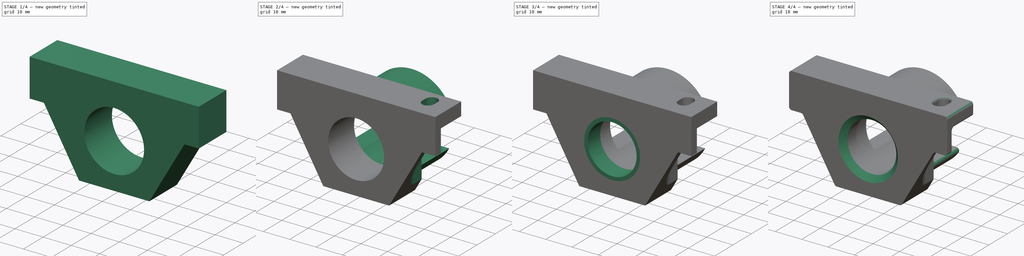
[diagram: build sequence overview — one tinted view per stage of 4, left to right]
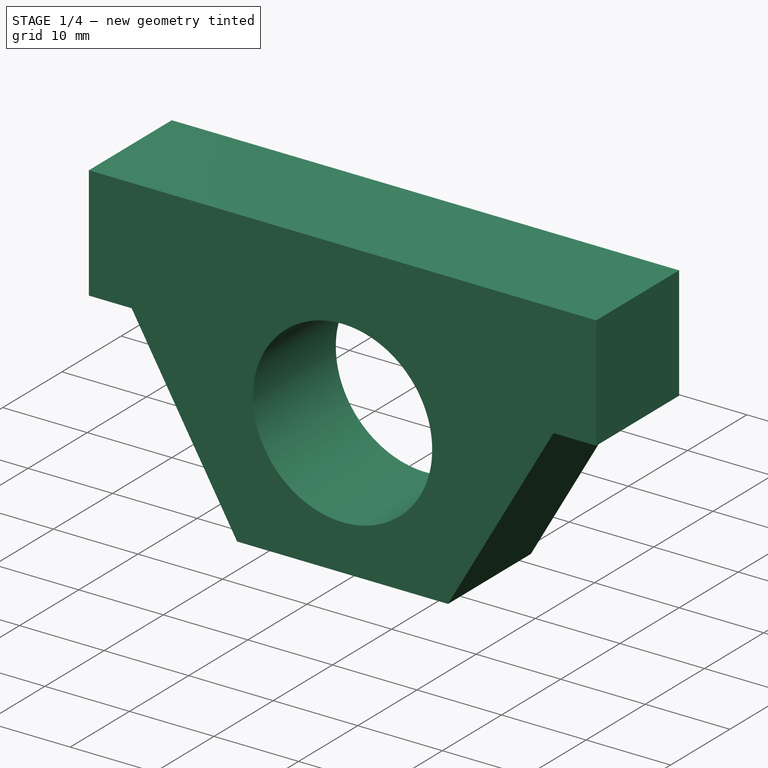
[diagram: stage 1 of 4 — iso view after this stage's code; geometry added in this stage tinted green]
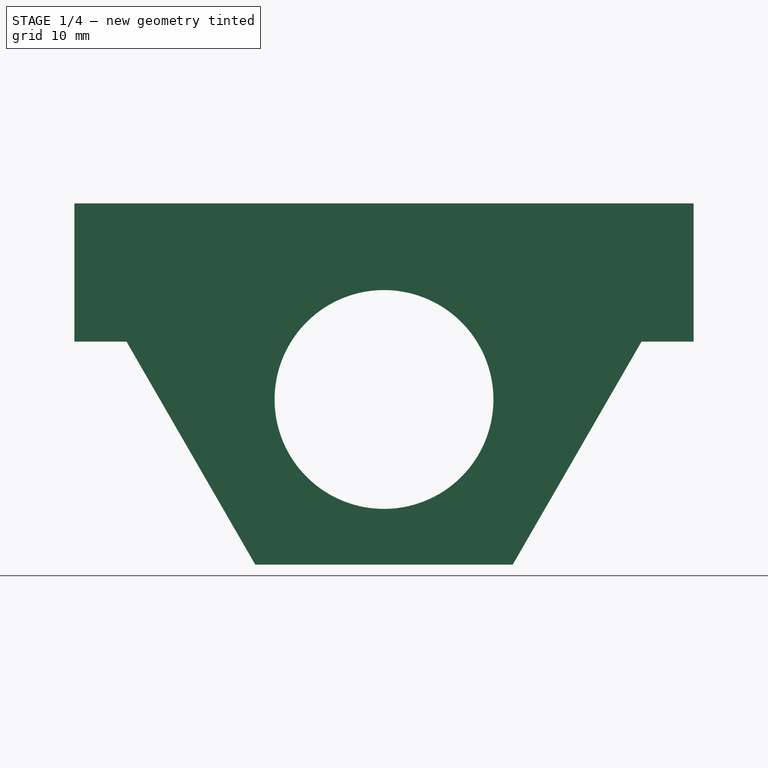
[diagram: stage 1 of 4 — front view after this stage's code; geometry added in this stage tinted green]
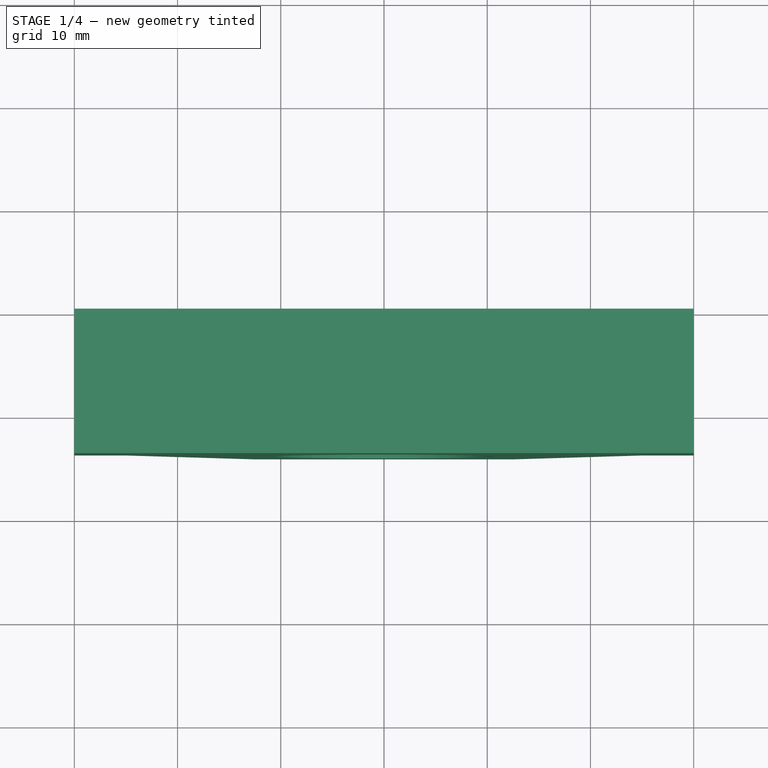
[diagram: stage 1 of 4 — top view after this stage's code; geometry added in this stage tinted green]
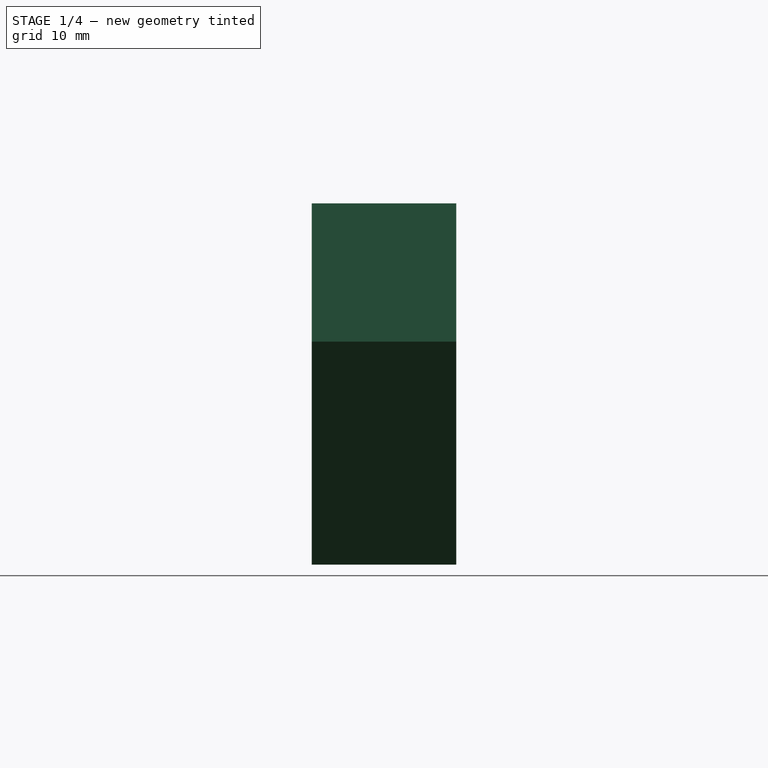
[diagram: stage 1 of 4 — right view after this stage's code; geometry added in this stage tinted green]
FCSTD DOCUMENT  (FreeCAD 0.18R16117 (Git))
Label: Hldn_SensorBracket_mk6
License: All rights reserved
LicenseURL: http://en.wikipedia.org/wiki/All_rights_reserved
objects: Sketcher::SketchObject×7, PartDesign::Pocket×4, PartDesign::Pad×3, PartDesign::Fillet×2, PartDesign::Chamfer×1, PartDesign::Body×1, Part::Box×1, Part::Mirroring×1
note: 27 computed .brp shape members not serialized (recipe doc carries the construction recipe); baked Part::Feature solids carry a one-line shape summary decoded from their .brp

FEATURE [Sketcher::SketchObject] Sketch
  MapMode = 5
  Placement = pos=(0,0,0) rot=(1,0,0;1.5708rad)
  Support = -> [XZ_Plane]
  sketch-geometry (14):
    g0: Circle CenterX=0 CenterY=0 CenterZ=0 NormalX=0 NormalY=0 NormalZ=1 AngleXU=0 Radius=10.6
    g1: LineSegment StartX=12.4708 StartY=-16 StartZ=0 EndX=24.9415 EndY=5.6 EndZ=0
    g2: LineSegment [constr] StartX=24.9415 StartY=5.6 StartZ=0 EndX=12.4708 EndY=27.2 EndZ=0
    g3: LineSegment [constr] StartX=12.4708 StartY=27.2 StartZ=0 EndX=-12.4708 EndY=27.2 EndZ=0
    g4: LineSegment [constr] StartX=-12.4708 StartY=27.2 StartZ=0 EndX=-24.9415 EndY=5.6 EndZ=0
    g5: LineSegment StartX=-24.9415 StartY=5.6 StartZ=0 EndX=-12.4708 EndY=-16 EndZ=0
    g6: LineSegment StartX=-12.4708 StartY=-16 StartZ=0 EndX=12.4708 EndY=-16 EndZ=0
    g7: Circle [constr] CenterX=0 CenterY=5.6 CenterZ=0 NormalX=0 NormalY=0 NormalZ=1 AngleXU=0 Radius=24.9415
    g8: LineSegment StartX=-30 StartY=19 StartZ=0 EndX=30 EndY=19 EndZ=0
    g9: LineSegment StartX=30 StartY=19 StartZ=0 EndX=30 EndY=5.6 EndZ=0
    g10: LineSegment [constr] StartX=30 StartY=5.6 StartZ=0 EndX=-30 EndY=5.6 EndZ=0
    g11: LineSegment StartX=-30 StartY=5.6 StartZ=0 EndX=-30 EndY=19 EndZ=0
    g12: LineSegment StartX=-24.9415 StartY=5.6 StartZ=0 EndX=-30 EndY=5.6 EndZ=0
    g13: LineSegment StartX=24.9415 StartY=5.6 StartZ=0 EndX=30 EndY=5.6 EndZ=0
  constraints (34):
    c: Coincident(g0,g-1)
    c: Coincident(g1,g2)
    c: Coincident(g2,g3)
    c: Coincident(g3,g4)
    c: Coincident(g4,g5)
    c: Coincident(g5,g6)
    c: Coincident(g6,g1)
    c: Equal(g1, g2-g6) x5
    c: PointOnObject(g1,g7)
    c: PointOnObject(g2,g7)
    c: PointOnObject(g3,g7)
    c: PointOnObject(g4,g7)
    c: PointOnObject(g5,g7)
    c: PointOnObject(g6,g7)
    c: PointOnObject(g7,g-2)
    c: Horizontal(g6)
    c: Distance(g7,g0) = 5.6
    c: Coincident(g8,g9)
    c: Coincident(g9,g10)
    c: Coincident(g10,g11)
    c: Coincident(g11,g8)
    c: Horizontal(g10)
    c: Vertical(g9)
    c: Vertical(g11)
    c: PointOnObject(g5,g10)
    c: Coincident(g12,g5)
    c: Coincident(g12,g11)
    c: Coincident(g13,g1)
    c: Coincident(g13,g9)
    c: Symmetric(g8,g8,g-2)
    c: Distance(g0,g8) = 19
    c: Distance(g0,g6) = 16
    c: Distance(g8) = 60
    c: Diameter(g0) = 21.2
FEATURE [PartDesign::Pad] Pad
  Length = 14
  Length2 = 100
  Placement = pos=(0,0,0) rot=(1,0,0;1.5708rad)
  Profile = -> Sketch
  Type = 0
FEATURE [PartDesign::Body] Body
  Group = -> [Sketch,Pad,Sketch001,Pad001,Sketch003,Sketch004,Pocket002,Sketch005,Pocket003,Sketch007,Pocket,Pocket004,Sketch008,Pad002,Chamfer,Fillet,Fillet001]
  Origin = -> Origin
  Tip = -> Fillet001
FEATURE [Part::Box] Box001  label="Cube001"
  AttacherType = Attacher::AttachEngine3D
  Height = 5
  Length = 8
  Placement = pos=(18,-14,14) rot=(0,0,1;0rad)
  Width = 13
FEATURE [Part::Mirroring] Part__Mirroring  label="density infill"
  Base = (0,0,0)
  Normal = (1,0,0)
  Source = -> Box001
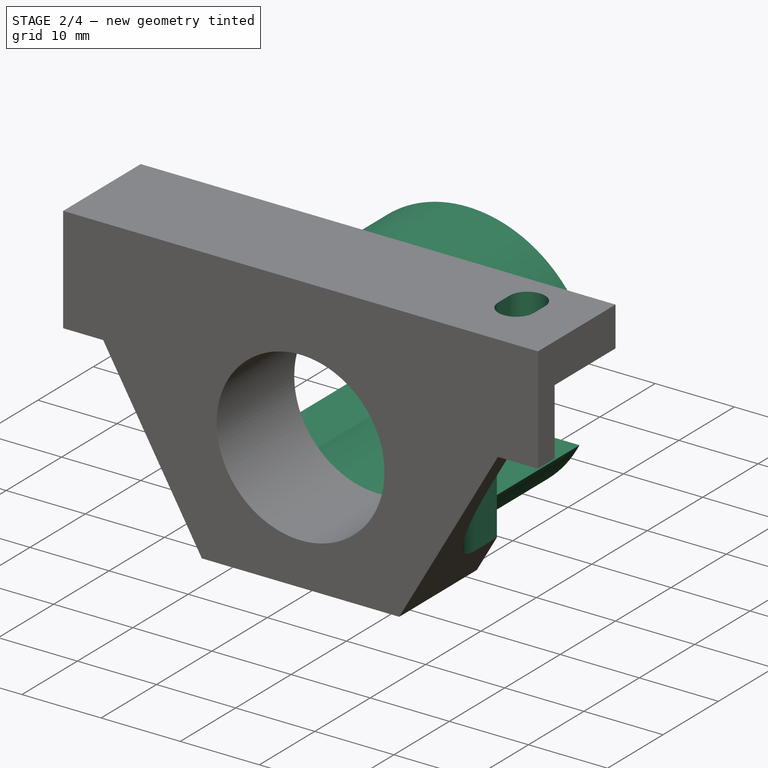
[diagram: stage 2 of 4 — iso view after this stage's code; geometry added in this stage tinted green]
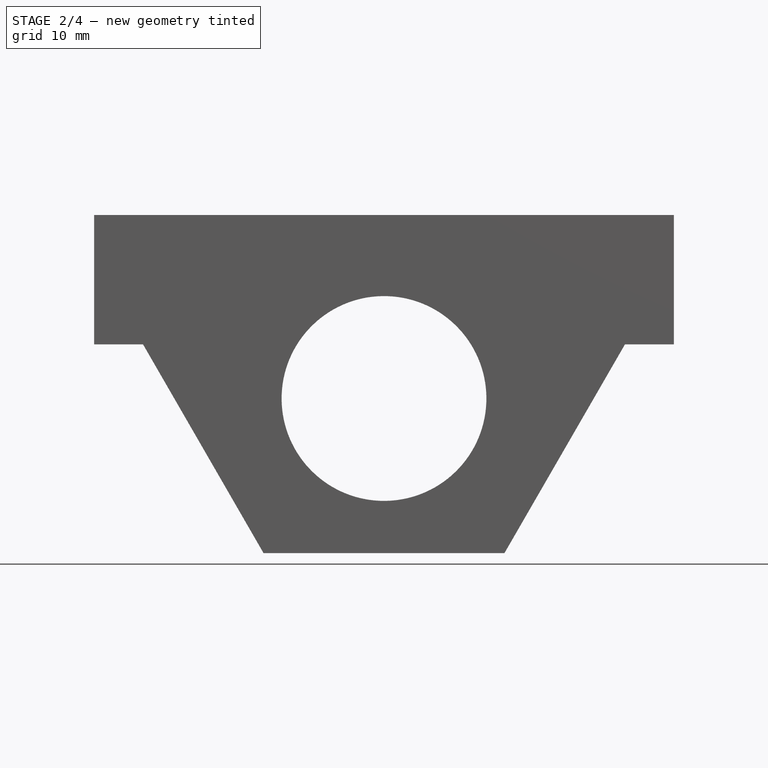
[diagram: stage 2 of 4 — front view after this stage's code; geometry added in this stage tinted green]
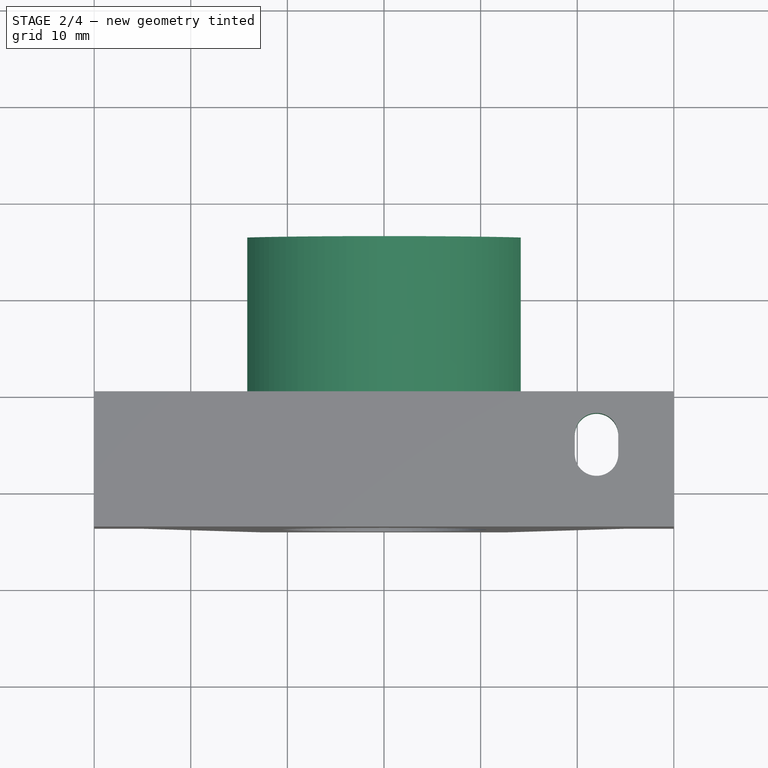
[diagram: stage 2 of 4 — top view after this stage's code; geometry added in this stage tinted green]
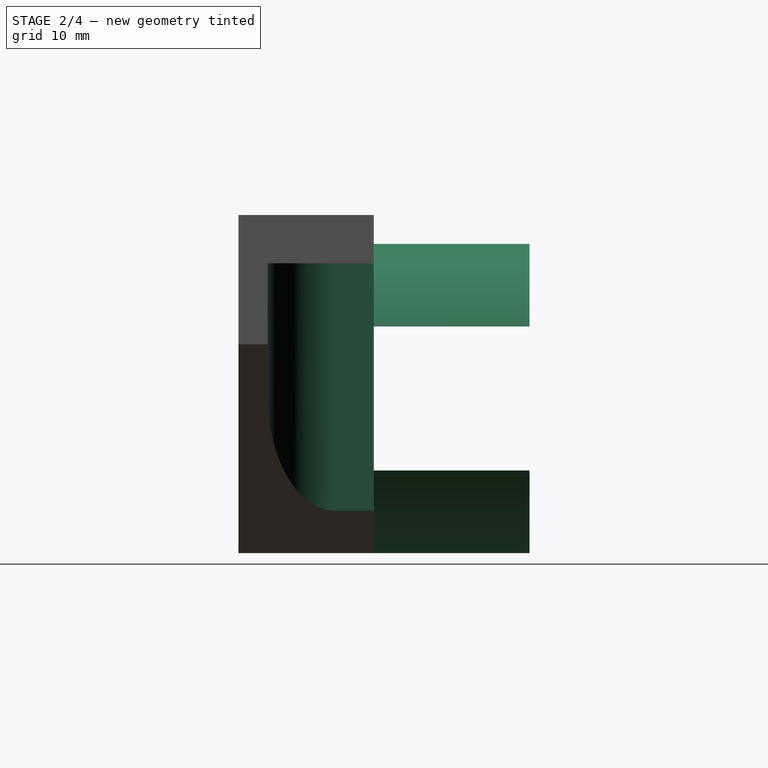
[diagram: stage 2 of 4 — right view after this stage's code; geometry added in this stage tinted green]
FEATURE [Sketcher::SketchObject] Sketch001
  MapMode = 5
  Placement = pos=(0,0,0) rot=(-1,0,0;1.5708rad)
  sketch-geometry (8):
    g0: ArcOfCircle CenterX=0 CenterY=0 CenterZ=0 NormalX=0 NormalY=0 NormalZ=1 AngleXU=0 Radius=16 StartAngle=3.62593 EndAngle=5.79884
    g1: ArcOfCircle CenterX=0 CenterY=0 CenterZ=0 NormalX=0 NormalY=0 NormalZ=1 AngleXU=0 Radius=10.7 StartAngle=3.91177 EndAngle=5.51301
    g2: LineSegment StartX=14.1597 StartY=-7.45 StartZ=0 EndX=7.68033 EndY=-7.45 EndZ=0
    g3: LineSegment StartX=-14.1597 StartY=7.45 StartZ=0 EndX=-7.68033 EndY=7.45 EndZ=0
    g4: LineSegment StartX=7.68033 StartY=7.45 StartZ=0 EndX=14.1597 EndY=7.45 EndZ=0
    g5: LineSegment StartX=-7.68033 StartY=-7.45 StartZ=0 EndX=-14.1597 EndY=-7.45 EndZ=0
    g6: ArcOfCircle CenterX=0 CenterY=0 CenterZ=0 NormalX=0 NormalY=0 NormalZ=1 AngleXU=0 Radius=10.7 StartAngle=0.770176 EndAngle=2.37142
    g7: ArcOfCircle CenterX=0 CenterY=0 CenterZ=0 NormalX=0 NormalY=0 NormalZ=1 AngleXU=0 Radius=16 StartAngle=0.484341 EndAngle=2.65725
  constraints (21):
    c: Coincident(g0,g-1)
    c: Diameter(g0) = 32
    c: Coincident(g1,g0)
    c: Diameter(g1) = 21.4
    c: Horizontal(g2)
    c: Horizontal(g3)
    c: Tangent(g3,g4)
    c: Tangent(g2,g5)
    c: Coincident(g0,g5)
    c: Coincident(g7,g3)
    c: Coincident(g1,g5)
    c: Coincident(g6,g3)
    c: Coincident(g1,g2)
    c: Coincident(g6,g4)
    c: Coincident(g1,g6)
    c: Equal(g0,g7)
    c: Coincident(g0,g2)
    c: Coincident(g7,g4)
    c: Coincident(g0,g7)
    c: Symmetric(g1,g4,g-1)
    c: DistanceY(g0,g4) = 14.9
FEATURE [PartDesign::Pad] Pad001
  BaseFeature = -> Pad
  Length = 16.12
  Length2 = 100
  Placement = pos=(0,0,0) rot=(1,0,0;1.5708rad)
  Profile = -> Sketch001
  Type = 0
FEATURE [Sketcher::SketchObject] Sketch003
  MapMode = 5
  Support = -> [XY_Plane]
  sketch-geometry (4):
    g0: LineSegment StartX=-1.8 StartY=10.12 StartZ=0 EndX=1.8 EndY=10.12 EndZ=0
    g1: LineSegment StartX=1.8 StartY=10.12 StartZ=0 EndX=1.8 EndY=13.62 EndZ=0
    g2: LineSegment StartX=1.8 StartY=13.62 StartZ=0 EndX=-1.8 EndY=13.62 EndZ=0
    g3: LineSegment StartX=-1.8 StartY=13.62 StartZ=0 EndX=-1.8 EndY=10.12 EndZ=0
  constraints (11):
    c: Coincident(g0,g1)
    c: Coincident(g1,g2)
    c: Coincident(g2,g3)
    c: Coincident(g3,g0)
    c: Horizontal(g0)
    c: Vertical(g1)
    c: Vertical(g3)
    c: Distance(g-1,g0) = 10.12
    c: Distance(g3) = 3.5
    c: Distance(g2) = 3.6
    c: Symmetric(g2,g1,g-2)
FEATURE [Sketcher::SketchObject] Sketch004
  MapMode = 5
  Placement = pos=(-1e-15,1.1e-14,5.6) rot=(1,0,0;3.14159rad)
  sketch-geometry (10):
    g0: LineSegment StartX=-30 StartY=11 StartZ=0 EndX=-22 EndY=11 EndZ=0
    g1: LineSegment StartX=-15 StartY=4 StartZ=0 EndX=-15 EndY=0 EndZ=0
    g2: LineSegment StartX=-15 StartY=0 StartZ=0 EndX=-30 EndY=0 EndZ=0
    g3: LineSegment StartX=-30 StartY=0 StartZ=0 EndX=-30 EndY=11 EndZ=0
    g4: LineSegment StartX=30 StartY=11 StartZ=0 EndX=22 EndY=11 EndZ=0
    g5: LineSegment StartX=15 StartY=4 StartZ=0 EndX=15 EndY=0 EndZ=0
    g6: LineSegment StartX=15 StartY=0 StartZ=0 EndX=30 EndY=0 EndZ=0
    g7: LineSegment StartX=30 StartY=0 StartZ=0 EndX=30 EndY=11 EndZ=0
    g8: ArcOfCircle CenterX=-22 CenterY=4 CenterZ=0 NormalX=0 NormalY=0 NormalZ=1 AngleXU=0 Radius=7 StartAngle=0 EndAngle=1.5708
    g9: ArcOfCircle CenterX=22 CenterY=4 CenterZ=0 NormalX=0 NormalY=0 NormalZ=1 AngleXU=0 Radius=7 StartAngle=1.5708 EndAngle=3.14159
  constraints (25):
    c: Coincident(g1,g2)
    c: Coincident(g2,g3)
    c: Coincident(g3,g0)
    c: Horizontal(g0)
    c: Horizontal(g2)
    c: Vertical(g1)
    c: Vertical(g3)
    c: PointOnObject(g1,g-1)
    c: Coincident(g5,g6)
    c: Coincident(g6,g7)
    c: Coincident(g7,g4)
    c: Horizontal(g4)
    c: Horizontal(g6)
    c: Vertical(g5)
    c: Vertical(g7)
    c: PointOnObject(g5,g-1)
    c: Equal(g4,g0)
    c: Equal(g5,g1)
    c: Tangent(g0,g8) = 1.5708
    c: Tangent(g1,g8) = 1.5708
    c: Tangent(g4,g9) = -1.5708
    c: Tangent(g5,g9) = -1.5708
    c: Equal(g8,g9)
    c: Radius(g8) = 7
    c: DistanceX(g2,g1) = 15
FEATURE [PartDesign::Pocket] Pocket002
  BaseFeature = -> Pad001
  Length = 8.4
  Length2 = 100
  Placement = pos=(0,0,0) rot=(1,0,0;1.5708rad)
  Profile = -> Sketch004
  Type = 4
FEATURE [Sketcher::SketchObject] Sketch005
  ExternalGeometry = -> [Pocket002]
  MapMode = 5
  Placement = pos=(0,1.26e-14,19) rot=(0,0,1;3.14159rad)
  Support = -> [Pocket002]
  sketch-geometry (8):
    g0: ArcOfCircle CenterX=-22 CenterY=4.5 CenterZ=0 NormalX=0 NormalY=0 NormalZ=1 AngleXU=0 Radius=2.25 StartAngle=3.14159 EndAngle=6.28319
    g1: ArcOfCircle CenterX=-22 CenterY=6.5 CenterZ=0 NormalX=0 NormalY=0 NormalZ=1 AngleXU=0 Radius=2.25 StartAngle=0 EndAngle=3.14159
    g2: LineSegment StartX=-19.75 StartY=4.5 StartZ=0 EndX=-19.75 EndY=6.5 EndZ=0
    g3: LineSegment StartX=-24.25 StartY=4.5 StartZ=0 EndX=-24.25 EndY=6.5 EndZ=0
    g4: ArcOfCircle CenterX=22 CenterY=4.5 CenterZ=0 NormalX=0 NormalY=0 NormalZ=1 AngleXU=0 Radius=2.25 StartAngle=3.14159 EndAngle=6.28319
    g5: ArcOfCircle CenterX=22 CenterY=6.5 CenterZ=0 NormalX=0 NormalY=0 NormalZ=1 AngleXU=0 Radius=2.25 StartAngle=2e-16 EndAngle=3.14159
    g6: LineSegment StartX=24.25 StartY=4.5 StartZ=0 EndX=24.25 EndY=6.5 EndZ=0
    g7: LineSegment StartX=19.75 StartY=4.5 StartZ=0 EndX=19.75 EndY=6.5 EndZ=0
  constraints (19):
    c: Tangent(g0,g3) = 1.5708
    c: Tangent(g0,g2) = -1.5708
    c: Tangent(g2,g1) = -1.5708
    c: Tangent(g3,g1) = 1.5708
    c: Vertical(g2)
    c: Equal(g0,g1)
    c: Tangent(g4,g7) = 1.5708
    c: Tangent(g4,g6) = -1.5708
    c: Tangent(g6,g5) = -1.5708
    c: Tangent(g7,g5) = 1.5708
    c: Vertical(g6)
    c: Equal(g4,g5)
    c: Symmetric(g0,g4,g-2)
    c: Equal(g3,g7)
    c: Equal(g1,g5)
    c: DistanceX(g-2,g4) = 22
    c: Diameter(g4) = 4.5
    c: Distance(g5,g4) = 2
    c: Distance(g0,g-3) = 9.5
FEATURE [PartDesign::Pocket] Pocket003
  BaseFeature = -> Pocket002
  Length = 5
  Length2 = 100
  Placement = pos=(0,0,0) rot=(1,0,0;1.5708rad)
  Profile = -> Sketch005
  Type = 0
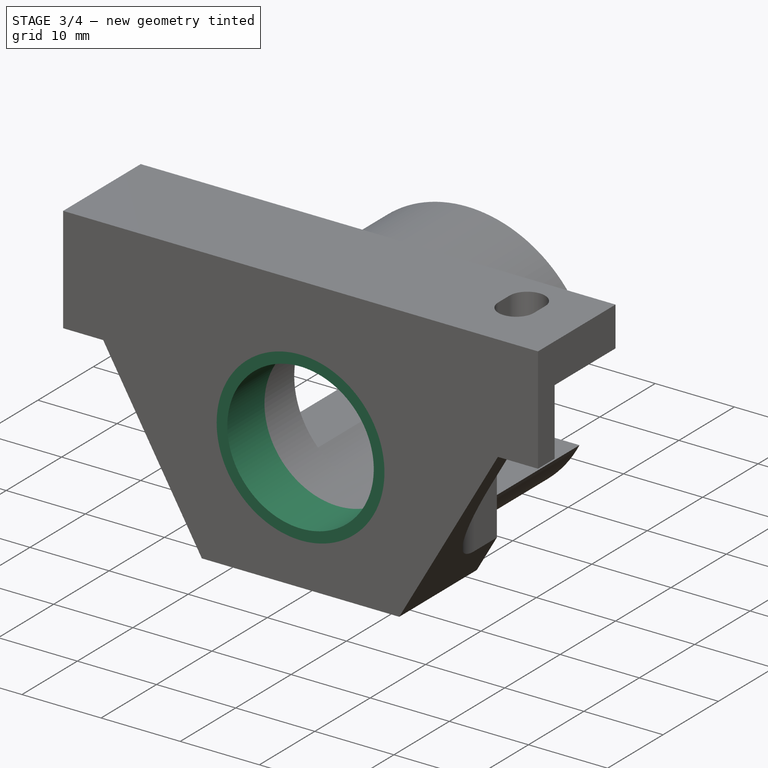
[diagram: stage 3 of 4 — iso view after this stage's code; geometry added in this stage tinted green]
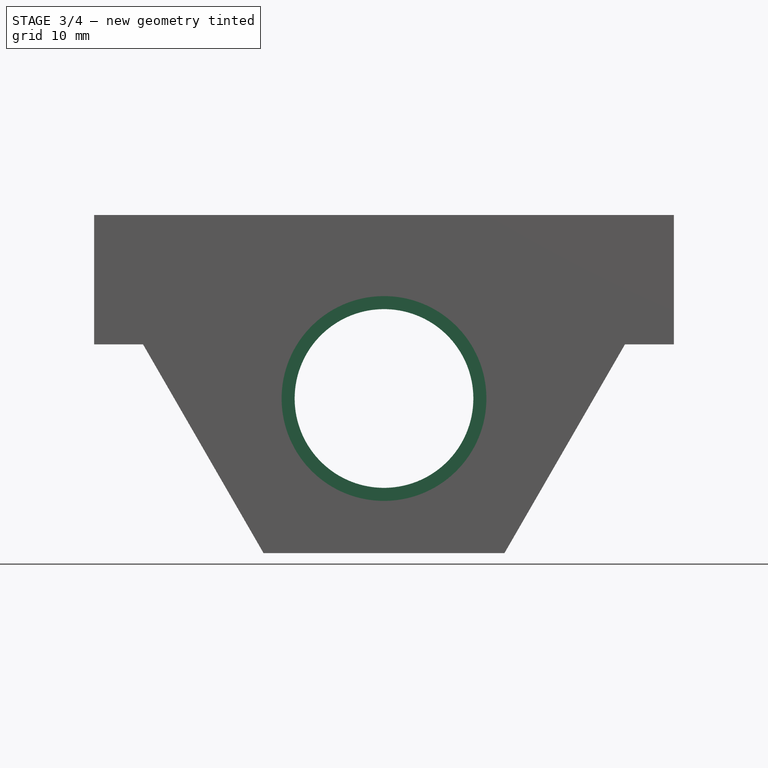
[diagram: stage 3 of 4 — front view after this stage's code; geometry added in this stage tinted green]
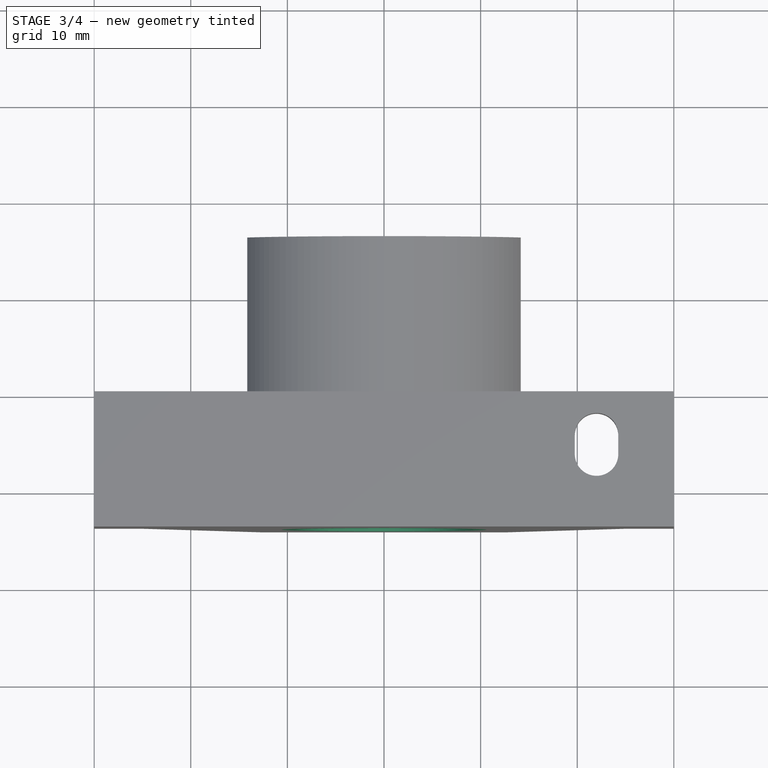
[diagram: stage 3 of 4 — top view after this stage's code; geometry added in this stage tinted green]
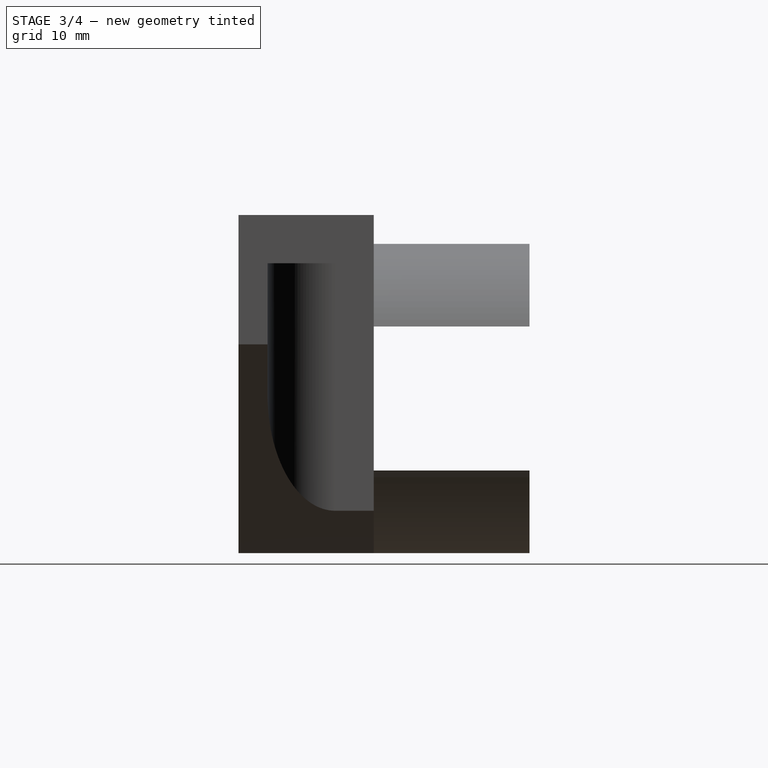
[diagram: stage 3 of 4 — right view after this stage's code; geometry added in this stage tinted green]
FEATURE [Sketcher::SketchObject] Sketch007
  MapMode = 5
  Placement = pos=(0,16.12,-3.22e-14) rot=(-1,0,0;1.5708rad)
  sketch-geometry (4):
    g0: LineSegment StartX=-1.8 StartY=12.05 StartZ=0 EndX=1.8 EndY=12.05 EndZ=0
    g1: LineSegment StartX=1.8 StartY=12.05 StartZ=0 EndX=1.8 EndY=-12.05 EndZ=0
    g2: LineSegment StartX=1.8 StartY=-12.05 StartZ=0 EndX=-1.8 EndY=-12.05 EndZ=0
    g3: LineSegment StartX=-1.8 StartY=-12.05 StartZ=0 EndX=-1.8 EndY=12.05 EndZ=0
  constraints (10):
    c: Coincident(g0,g1)
    c: Coincident(g1,g2)
    c: Coincident(g2,g3)
    c: Coincident(g3,g0)
    c: Horizontal(g2)
    c: Vertical(g1)
    c: Distance(g1) = 24.1
    c: Distance(g2) = 3.6
    c: Symmetric(g0,g0,g-2)
    c: Symmetric(g0,g2,g-1)
FEATURE [PartDesign::Pocket] Pocket
  BaseFeature = -> Pocket003
  Length = 6
  Length2 = 100
  Placement = pos=(0,0,0) rot=(1,0,0;1.5708rad)
  Profile = -> Sketch007
  Type = 0
FEATURE [PartDesign::Pocket] Pocket004
  BaseFeature = -> Pocket
  Length = 27
  Length2 = 100
  Midplane = true
  Placement = pos=(0,0,0) rot=(1,0,0;1.5708rad)
  Profile = -> Sketch003
  Type = 0
FEATURE [Sketcher::SketchObject] Sketch008
  ExternalGeometry = -> [Pocket004]
  MapMode = 5
  Placement = pos=(0,-14,6.2e-15) rot=(1,0,0;1.5708rad)
  Support = -> [Pocket004]
  sketch-geometry (2):
    g0: Circle CenterX=0 CenterY=0 CenterZ=0 NormalX=0 NormalY=0 NormalZ=1 AngleXU=0 Radius=9.25
    g1: Circle CenterX=0.026834 CenterY=-0.039027 CenterZ=0 NormalX=0 NormalY=0 NormalZ=1 AngleXU=0 Radius=10.8179
  constraints (1):
    c: Diameter(g0) = 18.5
FEATURE [PartDesign::Pad] Pad002
  BaseFeature = -> Pocket004
  Length = 6.7
  Length2 = 100
  Placement = pos=(0,0,0) rot=(1,0,0;1.5708rad)
  Profile = -> Sketch008
  Reversed = true
  Type = 0
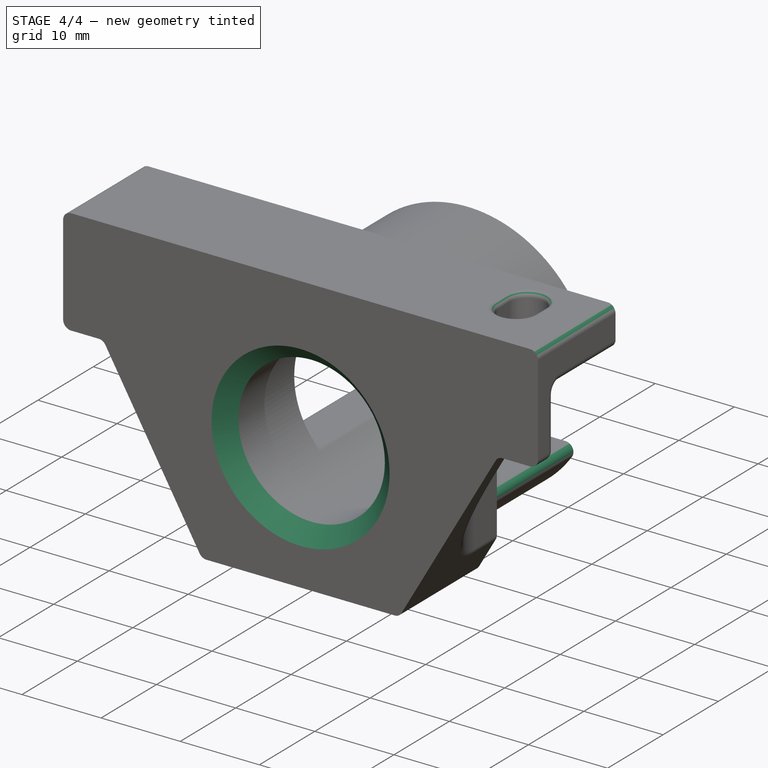
[diagram: stage 4 of 4 — iso view after this stage's code; geometry added in this stage tinted green]
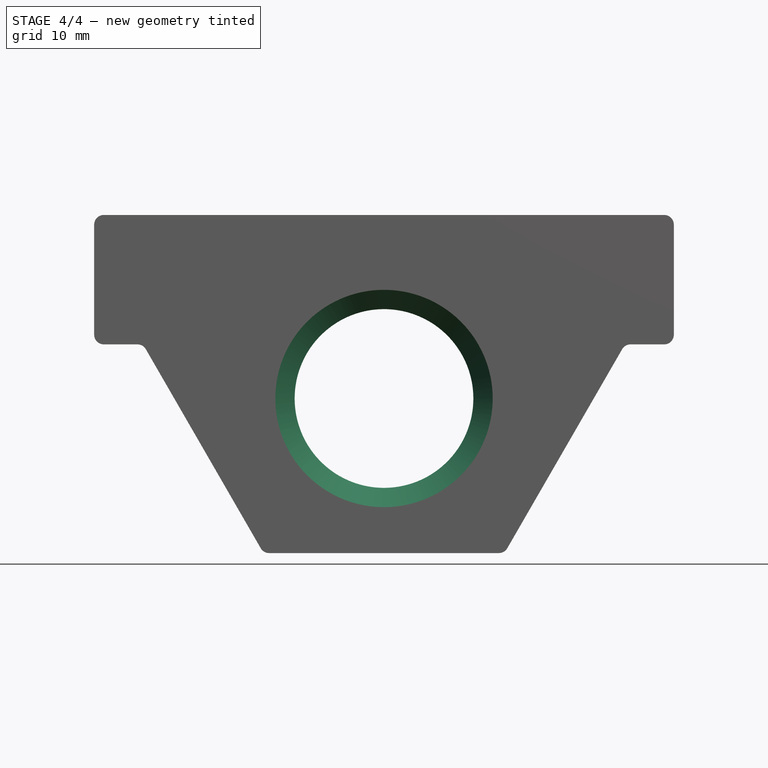
[diagram: stage 4 of 4 — front view after this stage's code; geometry added in this stage tinted green]
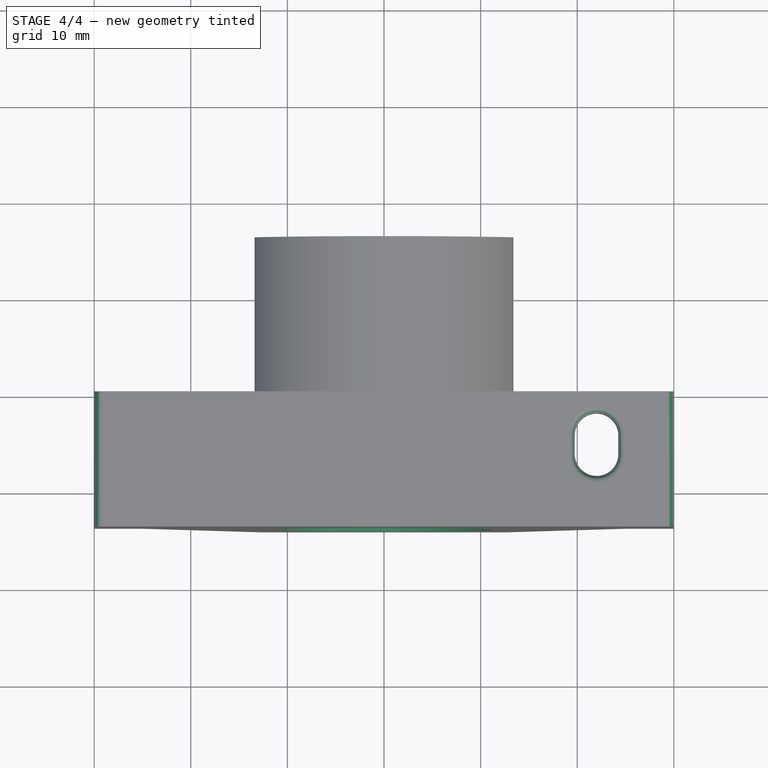
[diagram: stage 4 of 4 — top view after this stage's code; geometry added in this stage tinted green]
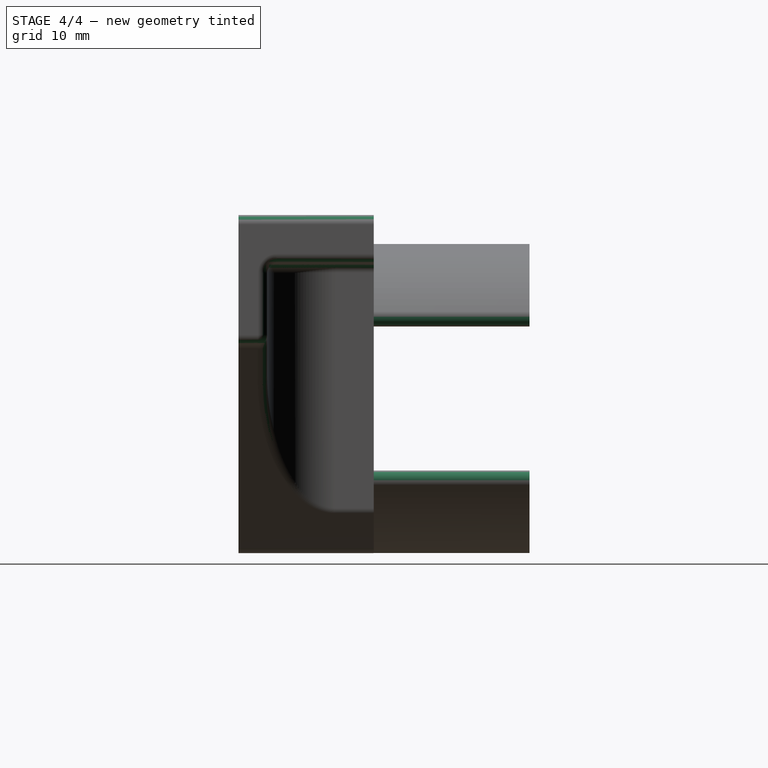
[diagram: stage 4 of 4 — right view after this stage's code; geometry added in this stage tinted green]
FEATURE [PartDesign::Chamfer] Chamfer
  Base = -> Pad002 [Edge141]
  BaseFeature = -> Pad002
  Placement = pos=(0,0,0) rot=(1,0,0;1.5708rad)
  Size = 2
FEATURE [PartDesign::Fillet] Fillet
  Base = -> Chamfer [Edge33,Edge45,Edge43,Edge31,Edge20,Edge16,Edge17,Edge19,Edge24,Edge26,Edge23,Edge18,Edge14,Edge54,Edge72,Edge28,Edge42,Edge46,Edge116,Edge114,Edge91,Edge90,Edge113,Edge105,Edge93,Edge95]
  BaseFeature = -> Chamfer
  Placement = pos=(0,0,0) rot=(1,0,0;1.5708rad)
  Radius = 1
FEATURE [PartDesign::Fillet] Fillet001
  Base = -> Fillet [Edge194,Edge193,Edge178,Edge179,Face100,Face102,Edge56,Edge133,Edge138,Edge58]
  BaseFeature = -> Fillet
  Placement = pos=(0,0,0) rot=(1,0,0;1.5708rad)
  Radius = 0.7
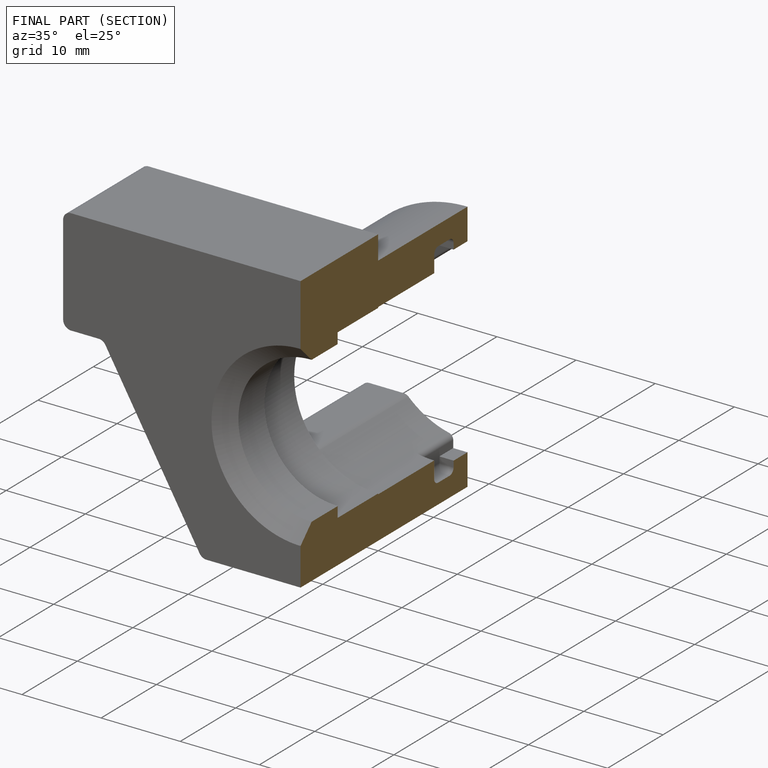
[diagram: finished part — half-section view (interior)]
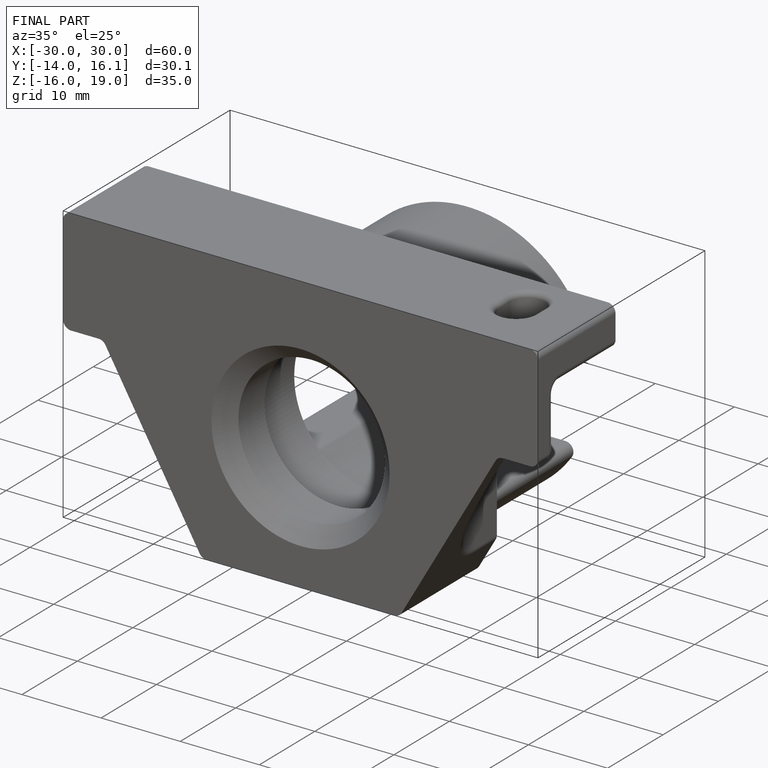
[diagram: finished part — iso view with bounding-box wireframe]
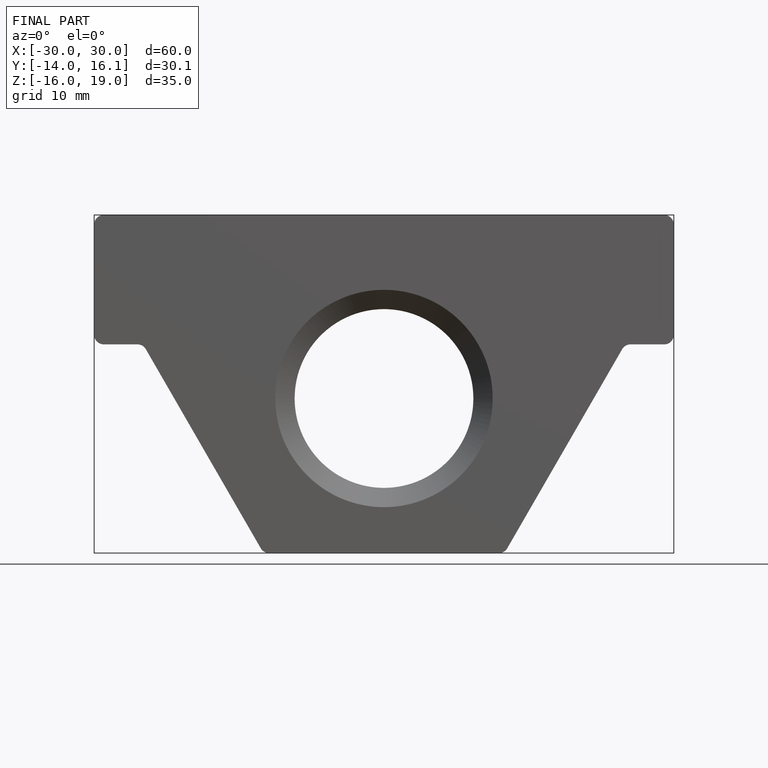
[diagram: finished part — front view with bounding-box wireframe]
